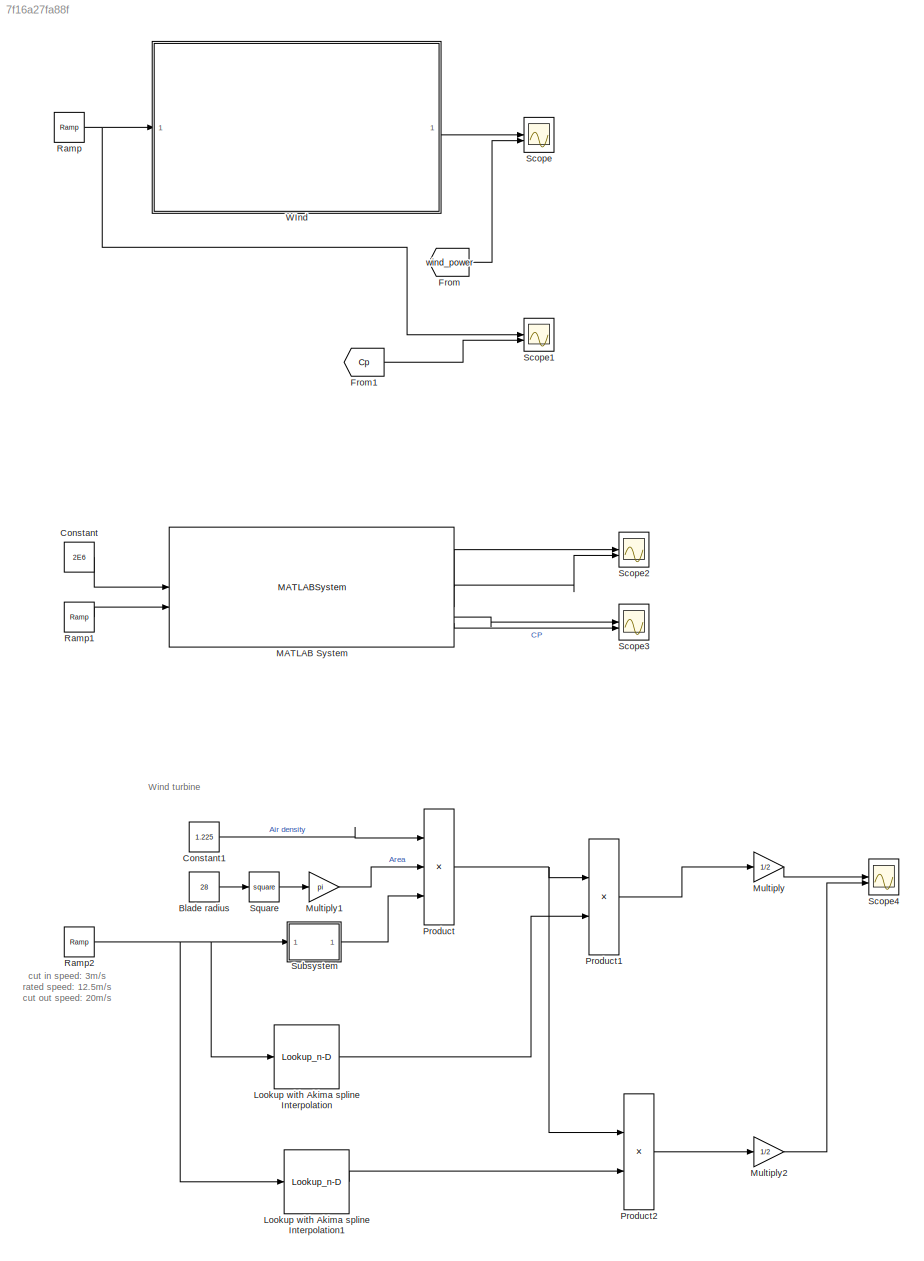
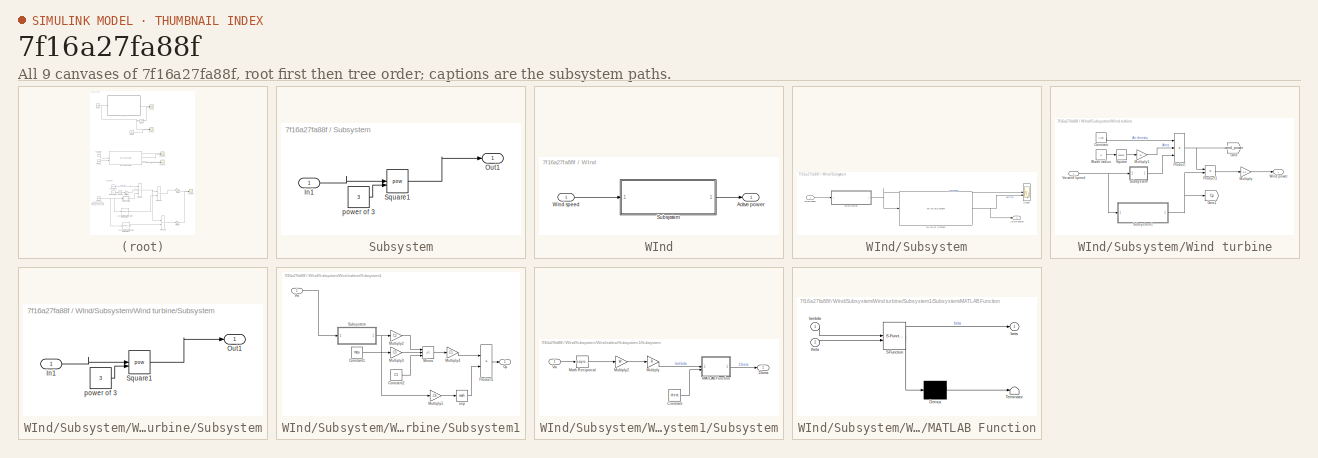
[diagram: thumbnail index - all 9 canvases of the model, root first then tree order]
MODEL slx_7f16a27fa88f
KIND model
CONFIG AbsTol = auto
CONFIG EnableMultiTasking = off
CONFIG FixedStep = 0.01
CONFIG MaxStep = auto
CONFIG MinStep = auto
CONFIG RelTol = 1e-3
CONFIG SampleTimeConstraint = Unconstrained
CONFIG SolverName = FixedStepAuto
CONFIG StartTime = 0.0
CONFIG StopTime = 30
BLOCK [Constant] Blade radius
  Value = 28
BLOCK [Constant] Constant
  Value = 2E6
BLOCK [Constant] Constant1
  Value = 1.225
BLOCK [From] From
  GotoTag = wind_power
  TagVisibility = global
BLOCK [From] From1
  GotoTag = Cp
  TagVisibility = global
BLOCK [Lookup_n-D] Lookup with Akima spline Interpolation
  BreakpointsForDimension1 = [0;1;2;3;4;5;6;7;8;9;10;11;12;13;14;15;16;17;18;19;20;21;22;23;24;25;26;27;28]
  InputPortMap = u0
  InternalRulePriority = Speed
  NumberOfTableDimensions = 1
  OutDataTypeStr = double
  RndMeth = Simplest
  Table = [0;0;0;0.228;0.322;0.38;0.408;0.413;0.418;0.419;0.419;0.401;0.378;0.305;0.244;0.199;0.164;0.136;0.115;0.098;0.084;0.072;0.063;0.055;0.048;0.042;0;0;0]
BLOCK [Lookup_n-D] Lookup with Akima spline Interpolation1
  BreakpointsForDimension1 = [0;1;2;3;4;5;6;7;8;9;10;11;12;13;14;15;16;17;18;19;20;21;22;23;24;25;26;27;28]
  InputPortMap = u0
  InternalRulePriority = Speed
  InterpMethod = Akima spline
  NumberOfTableDimensions = 1
  OutDataTypeStr = double
  RndMeth = Simplest
  Table = [0;0;0;0.228;0.322;0.38;0.408;0.413;0.418;0.419;0.419;0.401;0.378;0.305;0.244;0.199;0.164;0.136;0.115;0.098;0.084;0.072;0.063;0.055;0.048;0.042;0;0;0]
BLOCK [MATLABSystem] MATLAB System
  MaskDisplay = disp('wt_model_with_pitch');\nport_label('input',1,'P_SETPOINT');\nport_label('input',2,'V_WINDSPEED');\nport_label('output',1,'P');\nport_label('output',2,'P_MAX');\nport_label('output',3,'beta');\nport_label('output',4,'C_P');
  MaskType = wt_model_with_pitch
  SimulateUsing = Code generation
  System = wt_model_with_pitch
  Ts = 0.01
  inertia_dynamicsTimeConstant = 3
  pitch_inertia_dynamicsPitchRate = 2
  turbine_Pinst = 2e6
  turbine_dynamicsTimeConstant = 10
BLOCK [Gain] Multiply
  Gain = 1/2
BLOCK [Gain] Multiply1
  Gain = pi
BLOCK [Gain] Multiply2
  Gain = 1/2
BLOCK [Product] Product
  Inputs = 3
BLOCK [Product] Product1
BLOCK [Product] Product2
BLOCK [Reference] Ramp  REF=simulink/Sources/Ramp
  SourceBlock = simulink/Sources/Ramp
  SourceType = Ramp
BLOCK [Reference] Ramp1  REF=simulink/Sources/Ramp
  SourceBlock = simulink/Sources/Ramp
  SourceType = Ramp
BLOCK [Reference] Ramp2  REF=simulink/Sources/Ramp
  SourceBlock = simulink/Sources/Ramp
  SourceType = Ramp
BLOCK [Scope] Scope
  Floating = off
  NumInputPorts = 2
  ScopeSpecificationString = Simulink.scopes.TimeScopeBlockCfg('CurrentConfiguration', extmgr.ConfigurationSet(extmgr.Configuration('Core','General UI',true),extmgr.Configuration('Core','Source UI',true),extmgr.Configuration('Sources','WiredSimulink',true,'DataLoggingVariableName','ScopeData1'),extmgr.Configuration('Visuals','Time Domain',true,'SerializedDisplays',{struct('MinYLimReal','-24333525.77386','MaxYLimReal','1874293...<+1838ch>
BLOCK [Scope] Scope1
  Floating = off
  NumInputPorts = 2
  ScopeSpecificationString = Simulink.scopes.TimeScopeBlockCfg('CurrentConfiguration', extmgr.ConfigurationSet(extmgr.Configuration('Core','General UI',true),extmgr.Configuration('Core','Source UI',true),extmgr.Configuration('Sources','WiredSimulink',true,'DataLoggingVariableName','ScopeData2'),extmgr.Configuration('Visuals','Time Domain',true,'SerializedDisplays',{struct('MinYLimReal','-16.68763','MaxYLimReal','35.18751','YL...<+1456ch>
BLOCK [Scope] Scope2
  Floating = off
  NumInputPorts = 2
  ScopeSpecificationString = Simulink.scopes.TimeScopeBlockCfg('CurrentConfiguration', extmgr.ConfigurationSet(extmgr.Configuration('Core','General UI',true),extmgr.Configuration('Core','Source UI',true),extmgr.Configuration('Sources','WiredSimulink',true,'DataLoggingVariableName','ScopeData1'),extmgr.Configuration('Visuals','Time Domain',true,'SerializedDisplays',{struct('MinYLimReal','-250000.00000','MaxYLimReal','2250000.0...<+1508ch>
BLOCK [Scope] Scope3
  Floating = off
  NumInputPorts = 2
  ScopeSpecificationString = Simulink.scopes.TimeScopeBlockCfg('CurrentConfiguration', extmgr.ConfigurationSet(extmgr.Configuration('Core','General UI',true),extmgr.Configuration('Core','Source UI',true),extmgr.Configuration('Sources','WiredSimulink',true,'DataLoggingVariableName','ScopeData2'),extmgr.Configuration('Visuals','Time Domain',true,'SerializedDisplays',{struct('MinYLimReal','-0.125','MaxYLimReal','1.125','YLabelRe...<+1482ch>
BLOCK [Scope] Scope4
  Floating = off
  NumInputPorts = 2
  ScopeSpecificationString = Simulink.scopes.TimeScopeBlockCfg('CurrentConfiguration', extmgr.ConfigurationSet(extmgr.Configuration('Core','General UI',true),extmgr.Configuration('Core','Source UI',true),extmgr.Configuration('Sources','WiredSimulink',true,'DataLoggingVariableName','ScopeData3'),extmgr.Configuration('Visuals','Time Domain',true,'SerializedDisplays',{struct('MinYLimReal','-146312.76579','MaxYLimReal','1316814.8...<+1841ch>
BLOCK [Math] Square
  Operator = square
BLOCK [SubSystem] Subsystem
BLOCK [Inport] Subsystem/In1
BLOCK [Outport] Subsystem/Out1
BLOCK [Math] Subsystem/Square1
  Operator = pow
BLOCK [Constant] Subsystem/power of 3
  Value = 3
BLOCK [SubSystem] WInd
BLOCK [Outport] WInd/Acitve power
BLOCK [SubSystem] WInd/Subsystem
BLOCK [Outport] WInd/Subsystem/Acitve power
BLOCK [MATLABSystem] WInd/Subsystem/MATLAB System
  MaskDisplay = disp('windturbine_pitch_control');\nport_label('input',1,'P_mechanic');\nport_label('output',1,'P');
  MaskType = windturbine_pitch_control
  SimulateUsing = Code generation
  System = windturbine_pitch_control
  Ts = 0.01
  inertia_dynamicsTimeConstant = 3
  turbine_Pinst = 1e6
  turbine_dynamicsTimeConstant = 5
BLOCK [Scope] WInd/Subsystem/Scope
  Floating = off
  NumInputPorts = 2
  ScopeSpecificationString = Simulink.scopes.TimeScopeBlockCfg('CurrentConfiguration', extmgr.ConfigurationSet(extmgr.Configuration('Core','General UI',true),extmgr.Configuration('Core','Source UI',true),extmgr.Configuration('Sources','WiredSimulink',true),extmgr.Configuration('Visuals','Time Domain',true,'SerializedDisplays',{struct('MinYLimReal','-299563.71311','MaxYLimReal','1559580.42045','YLabelReal','','MinYLimMag','   ...<+1527ch>
BLOCK [Inport] WInd/Subsystem/Wind speed
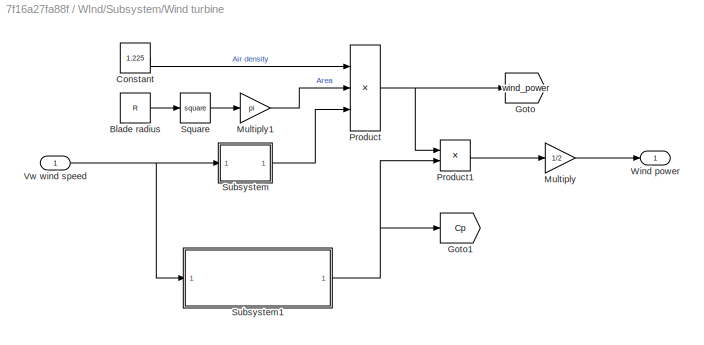
BLOCK [SubSystem] WInd/Subsystem/Wind turbine
BLOCK [Constant] WInd/Subsystem/Wind turbine/Blade radius
  Value = R
BLOCK [Constant] WInd/Subsystem/Wind turbine/Constant
  Value = 1.225
BLOCK [Goto] WInd/Subsystem/Wind turbine/Goto
  GotoTag = wind_power
  TagVisibility = global
BLOCK [Goto] WInd/Subsystem/Wind turbine/Goto1
  GotoTag = Cp
  TagVisibility = global
BLOCK [Gain] WInd/Subsystem/Wind turbine/Multiply
  Gain = 1/2
BLOCK [Gain] WInd/Subsystem/Wind turbine/Multiply1
  Gain = pi
BLOCK [Product] WInd/Subsystem/Wind turbine/Product
  Inputs = 3
BLOCK [Product] WInd/Subsystem/Wind turbine/Product1
BLOCK [Math] WInd/Subsystem/Wind turbine/Square
  Operator = square
BLOCK [SubSystem] WInd/Subsystem/Wind turbine/Subsystem
BLOCK [Inport] WInd/Subsystem/Wind turbine/Subsystem/In1
BLOCK [Outport] WInd/Subsystem/Wind turbine/Subsystem/Out1
BLOCK [Math] WInd/Subsystem/Wind turbine/Subsystem/Square1
  Operator = pow
BLOCK [Constant] WInd/Subsystem/Wind turbine/Subsystem/power of 3
  Value = 3
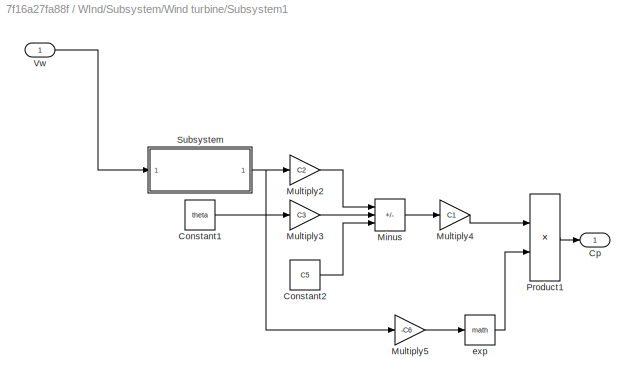
BLOCK [SubSystem] WInd/Subsystem/Wind turbine/Subsystem1
BLOCK [Constant] WInd/Subsystem/Wind turbine/Subsystem1/Constant1
  Value = theta
BLOCK [Constant] WInd/Subsystem/Wind turbine/Subsystem1/Constant2
  Value = C5
BLOCK [Outport] WInd/Subsystem/Wind turbine/Subsystem1/Cp
BLOCK [Sum] WInd/Subsystem/Wind turbine/Subsystem1/Minus
  IconShape = rectangular
  Inputs = +--
BLOCK [Gain] WInd/Subsystem/Wind turbine/Subsystem1/Multiply2
  Gain = C2
BLOCK [Gain] WInd/Subsystem/Wind turbine/Subsystem1/Multiply3
  Gain = C3
BLOCK [Gain] WInd/Subsystem/Wind turbine/Subsystem1/Multiply4
  Gain = C1
BLOCK [Gain] WInd/Subsystem/Wind turbine/Subsystem1/Multiply5
  Gain = -C6
BLOCK [Product] WInd/Subsystem/Wind turbine/Subsystem1/Product1
BLOCK [SubSystem] WInd/Subsystem/Wind turbine/Subsystem1/Subsystem
BLOCK [Outport] WInd/Subsystem/Wind turbine/Subsystem1/Subsystem/1//beta
BLOCK [Constant] WInd/Subsystem/Wind turbine/Subsystem1/Subsystem/Constant
  Value = theta
BLOCK [SubSystem] WInd/Subsystem/Wind turbine/Subsystem1/Subsystem/MATLAB Function
  ErrorFcn = Stateflow.Translate.translate
  PermitHierarchicalResolution = ExplicitOnly
  SFBlockType = MATLAB Function
  TreatAsAtomicUnit = on
BLOCK [Demux] WInd/Subsystem/Wind turbine/Subsystem1/Subsystem/MATLAB Function/ Demux 
  Outputs = 1
BLOCK [S-Function] WInd/Subsystem/Wind turbine/Subsystem1/Subsystem/MATLAB Function/ SFunction 
  EnableBusSupport = on
  FunctionName = sf_sfun
  PortCounts = [2 2]
  SFcnIsStateOwnerBlock = off
  SFunctionDeploymentMode = off
  Tag = Stateflow S-Function 2
BLOCK [Terminator] WInd/Subsystem/Wind turbine/Subsystem1/Subsystem/MATLAB Function/ Terminator 
BLOCK [Outport] WInd/Subsystem/Wind turbine/Subsystem1/Subsystem/MATLAB Function/beta
  VectorParamsAs1DForOutWhenUnconnected = off
BLOCK [Inport] WInd/Subsystem/Wind turbine/Subsystem1/Subsystem/MATLAB Function/lambda
BLOCK [Inport] WInd/Subsystem/Wind turbine/Subsystem1/Subsystem/MATLAB Function/theta
  Port = 2
BLOCK [Math] WInd/Subsystem/Wind turbine/Subsystem1/Subsystem/Math Reciprocal
  Operator = reciprocal
  SignedPower = on
BLOCK [Gain] WInd/Subsystem/Wind turbine/Subsystem1/Subsystem/Multiply
  Gain = R
BLOCK [Gain] WInd/Subsystem/Wind turbine/Subsystem1/Subsystem/Multiply2
  Gain = W
BLOCK [Inport] WInd/Subsystem/Wind turbine/Subsystem1/Subsystem/Vw
BLOCK [Inport] WInd/Subsystem/Wind turbine/Subsystem1/Vw
BLOCK [Math] WInd/Subsystem/Wind turbine/Subsystem1/exp
BLOCK [Inport] WInd/Subsystem/Wind turbine/Vw wind speed
BLOCK [Outport] WInd/Subsystem/Wind turbine/Wind power
BLOCK [Inport] WInd/Wind speed
ANNOTATION (root): Wind turbine
ANNOTATION (root): cut in speed: 3m/s rated speed: 12.5m/s cut out speed: 20m/s
LINE Blade radius:1 -> Square:1
LINE Constant1:1 -> Product:1
LINE Constant:1 -> MATLAB System:1
LINE From1:1 -> Scope1:2
LINE From:1 -> Scope:2
LINE Lookup with Akima spline Interpolation1:1 -> Product2:2
LINE Lookup with Akima spline Interpolation:1 -> Product1:2
LINE MATLAB System:1 -> Scope2:1
LINE MATLAB System:2 -> Scope2:2
LINE MATLAB System:3 -> Scope3:1
LINE MATLAB System:4 -> Scope3:2
LINE Multiply1:1 -> Product:2
LINE Multiply2:1 -> Scope4:2
LINE Multiply:1 -> Scope4:1
LINE Product1:1 -> Multiply:1
LINE Product2:1 -> Multiply2:1
NET Product:1 -> Product1:1, Product2:1
LINE Ramp1:1 -> MATLAB System:2
NET Ramp2:1 -> Lookup with Akima spline Interpolation1:1, Lookup with Akima spline Interpolation:1, Subsystem:1
NET Ramp:1 -> Scope1:1, WInd:1
LINE Square:1 -> Multiply1:1
LINE Subsystem/In1:1 -> Subsystem/Square1:1
LINE Subsystem/Square1:1 -> Subsystem/Out1:1
LINE Subsystem/power of 3:1 -> Subsystem/Square1:2
LINE Subsystem:1 -> Product:3
NET WInd/Subsystem/MATLAB System:1 -> WInd/Subsystem/Acitve power:1, WInd/Subsystem/Scope:2
LINE WInd/Subsystem/Wind speed:1 -> WInd/Subsystem/Wind turbine:1
LINE WInd/Subsystem/Wind turbine/Blade radius:1 -> WInd/Subsystem/Wind turbine/Square:1
LINE WInd/Subsystem/Wind turbine/Constant:1 -> WInd/Subsystem/Wind turbine/Product:1
LINE WInd/Subsystem/Wind turbine/Multiply1:1 -> WInd/Subsystem/Wind turbine/Product:2
LINE WInd/Subsystem/Wind turbine/Multiply:1 -> WInd/Subsystem/Wind turbine/Wind power:1
LINE WInd/Subsystem/Wind turbine/Product1:1 -> WInd/Subsystem/Wind turbine/Multiply:1
NET WInd/Subsystem/Wind turbine/Product:1 -> WInd/Subsystem/Wind turbine/Goto:1, WInd/Subsystem/Wind turbine/Product1:1
LINE WInd/Subsystem/Wind turbine/Square:1 -> WInd/Subsystem/Wind turbine/Multiply1:1
LINE WInd/Subsystem/Wind turbine/Subsystem/In1:1 -> WInd/Subsystem/Wind turbine/Subsystem/Square1:1
LINE WInd/Subsystem/Wind turbine/Subsystem/Square1:1 -> WInd/Subsystem/Wind turbine/Subsystem/Out1:1
LINE WInd/Subsystem/Wind turbine/Subsystem/power of 3:1 -> WInd/Subsystem/Wind turbine/Subsystem/Square1:2
LINE WInd/Subsystem/Wind turbine/Subsystem1/Constant1:1 -> WInd/Subsystem/Wind turbine/Subsystem1/Multiply3:1
LINE WInd/Subsystem/Wind turbine/Subsystem1/Constant2:1 -> WInd/Subsystem/Wind turbine/Subsystem1/Minus:3
LINE WInd/Subsystem/Wind turbine/Subsystem1/Minus:1 -> WInd/Subsystem/Wind turbine/Subsystem1/Multiply4:1
LINE WInd/Subsystem/Wind turbine/Subsystem1/Multiply2:1 -> WInd/Subsystem/Wind turbine/Subsystem1/Minus:1
LINE WInd/Subsystem/Wind turbine/Subsystem1/Multiply3:1 -> WInd/Subsystem/Wind turbine/Subsystem1/Minus:2
LINE WInd/Subsystem/Wind turbine/Subsystem1/Multiply4:1 -> WInd/Subsystem/Wind turbine/Subsystem1/Product1:1
LINE WInd/Subsystem/Wind turbine/Subsystem1/Multiply5:1 -> WInd/Subsystem/Wind turbine/Subsystem1/exp:1
LINE WInd/Subsystem/Wind turbine/Subsystem1/Product1:1 -> WInd/Subsystem/Wind turbine/Subsystem1/Cp:1
LINE WInd/Subsystem/Wind turbine/Subsystem1/Subsystem/Constant:1 -> WInd/Subsystem/Wind turbine/Subsystem1/Subsystem/MATLAB Function:2
LINE WInd/Subsystem/Wind turbine/Subsystem1/Subsystem/MATLAB Function:1 -> WInd/Subsystem/Wind turbine/Subsystem1/Subsystem/1//beta:1
LINE WInd/Subsystem/Wind turbine/Subsystem1/Subsystem/Math Reciprocal:1 -> WInd/Subsystem/Wind turbine/Subsystem1/Subsystem/Multiply2:1
LINE WInd/Subsystem/Wind turbine/Subsystem1/Subsystem/Multiply2:1 -> WInd/Subsystem/Wind turbine/Subsystem1/Subsystem/Multiply:1
LINE WInd/Subsystem/Wind turbine/Subsystem1/Subsystem/Multiply:1 -> WInd/Subsystem/Wind turbine/Subsystem1/Subsystem/MATLAB Function:1
LINE WInd/Subsystem/Wind turbine/Subsystem1/Subsystem/Vw:1 -> WInd/Subsystem/Wind turbine/Subsystem1/Subsystem/Math Reciprocal:1
NET WInd/Subsystem/Wind turbine/Subsystem1/Subsystem:1 -> WInd/Subsystem/Wind turbine/Subsystem1/Multiply2:1, WInd/Subsystem/Wind turbine/Subsystem1/Multiply5:1
LINE WInd/Subsystem/Wind turbine/Subsystem1/Vw:1 -> WInd/Subsystem/Wind turbine/Subsystem1/Subsystem:1
LINE WInd/Subsystem/Wind turbine/Subsystem1/exp:1 -> WInd/Subsystem/Wind turbine/Subsystem1/Product1:2
NET WInd/Subsystem/Wind turbine/Subsystem1:1 -> WInd/Subsystem/Wind turbine/Goto1:1, WInd/Subsystem/Wind turbine/Product1:2
LINE WInd/Subsystem/Wind turbine/Subsystem:1 -> WInd/Subsystem/Wind turbine/Product:3
NET WInd/Subsystem/Wind turbine/Vw wind speed:1 -> WInd/Subsystem/Wind turbine/Subsystem1:1, WInd/Subsystem/Wind turbine/Subsystem:1
NET WInd/Subsystem/Wind turbine:1 -> WInd/Subsystem/MATLAB System:1, WInd/Subsystem/Scope:1
LINE WInd/Subsystem:1 -> WInd/Acitve power:1
LINE WInd/Wind speed:1 -> WInd/Subsystem:1
LINE WInd:1 -> Scope:1
note: NET lines group one-source signal fan-out (src -> all destinations, sorted); 1:1 wires keep LINE
CHART WInd/Subsystem/Wind turbine/Subsystem1/Subsystem/MATLAB Function states=1 transitions=1
  STATE_LABEL 'eML_blk_kernel()'
  STATE_LABEL 'SCRIPT:\nfunction beta  = fcn(lambda,theta)\n%#codegen\n    beta= 1/(lambda+0.08*theta)-0.035/(1+theta^3);\nend'
CHART  states=0 transitions=0
